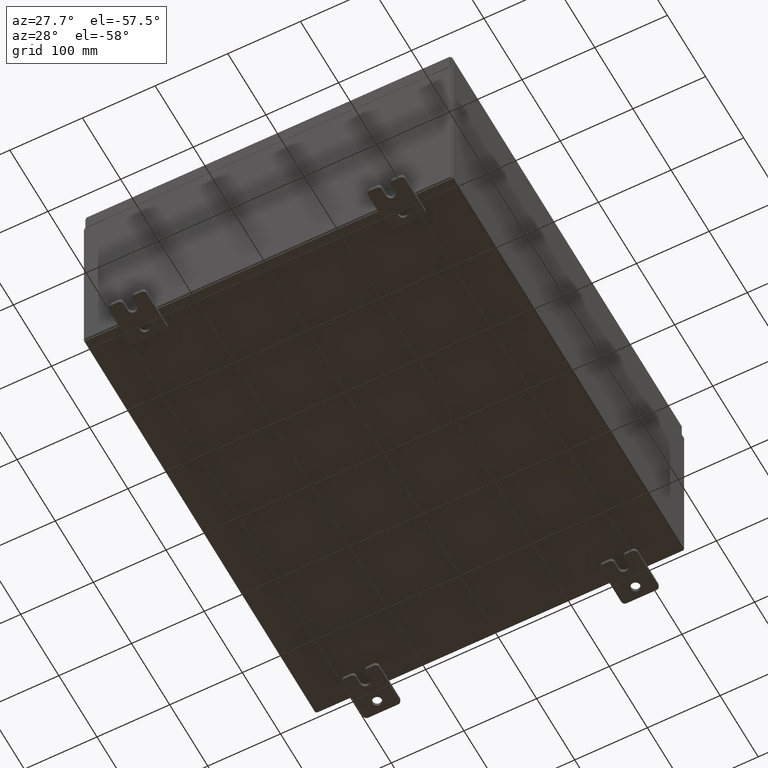
[diagram: clean part render]
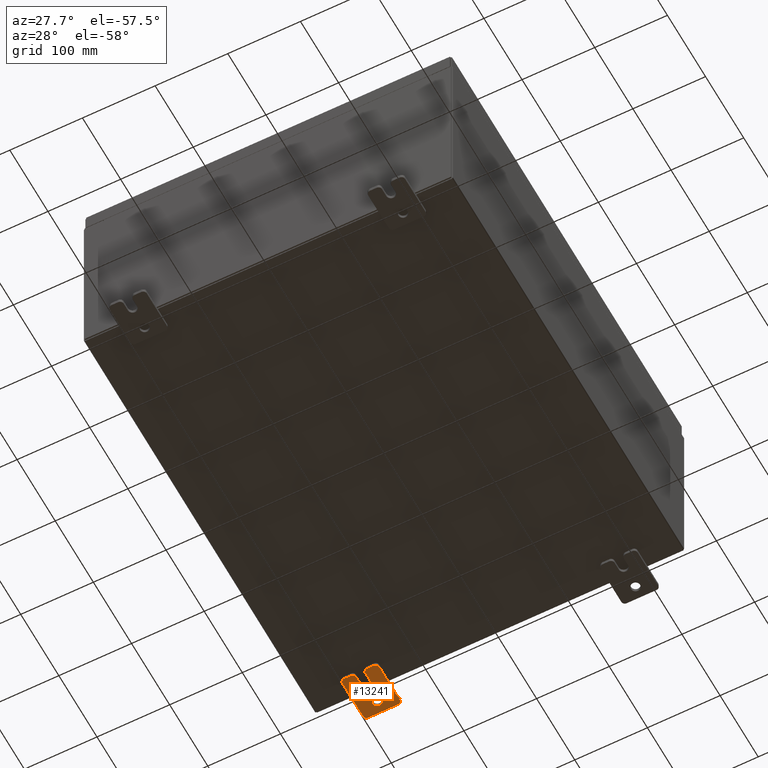
[diagram: same view with one face highlighted and labeled with its STEP entity id]
A machine part, auxiliary view. The second image highlights one B-rep face of the part: STEP entity #13241.
In plain terms, the highlighted planar face has unit normal (0, 0, 1).
Its self-contained STEP definition (entity closure, byte-faithful):
#333 = CARTESIAN_POINT ( 'NONE',  ( -0.1880000000000005800, -1.250000000000003800, 0.2500000000000005000 ) ) ;
#1643 = VERTEX_POINT ( 'NONE', #2832 ) ;
#2120 = AXIS2_PLACEMENT_3D ( 'NONE', #28383, #62713, #33320 ) ;
#2246 = CIRCLE ( 'NONE', #29845, 0.1900000000000011400 ) ;
#2832 = CARTESIAN_POINT ( 'NONE',  ( -0.1880000000000010000, 0.6249999999999992200, -0.2499999999999999200 ) ) ;
#2909 = CARTESIAN_POINT ( 'NONE',  ( -0.1879999999999997800, -1.250000000000003100, 0.4400000000000020000 ) ) ;
#2961 = EDGE_CURVE ( 'NONE', #49589, #39091, #2246, .T. ) ;
#3113 = VERTEX_POINT ( 'NONE', #21553 ) ;
#4411 = DIRECTION ( 'NONE',  ( 0.0000000000000000000, 7.189073667537492800E-016, -1.000000000000000000 ) ) ;
#4808 = DIRECTION ( 'NONE',  ( -1.000000000000000000, -0.0000000000000000000, 0.0000000000000000000 ) ) ;
#5217 = VECTOR ( 'NONE', #27392, 39.37007874015748100 ) ;
#5272 = CARTESIAN_POINT ( 'NONE',  ( -0.1879999999999997800, 1.059999999999993600, -0.8100000000000089400 ) ) ;
#5327 = CARTESIAN_POINT ( 'NONE',  ( -0.1879999999999997800, 1.059999999999993400, -1.000000000000010000 ) ) ;
#5486 = AXIS2_PLACEMENT_3D ( 'NONE', #63153, #33755, #4411 ) ;
#6452 = DIRECTION ( 'NONE',  ( 0.0000000000000000000, -1.639108796198553600E-015, -1.000000000000000000 ) ) ;
#7192 = DIRECTION ( 'NONE',  ( -1.000000000000000000, 6.523827964459549700E-016, 5.163192708025532000E-017 ) ) ;
#7648 = ORIENTED_EDGE ( 'NONE', *, *, #19574, .F. ) ;
#7961 = ORIENTED_EDGE ( 'NONE', *, *, #37955, .F. ) ;
#8204 = VERTEX_POINT ( 'NONE', #30893 ) ;
#8491 = CARTESIAN_POINT ( 'NONE',  ( -0.1879999999999997800, -1.060000000000001200, 0.9999999999999988900 ) ) ;
#9188 = VECTOR ( 'NONE', #55870, 39.37007874015748100 ) ;
#10177 = DIRECTION ( 'NONE',  ( 0.0000000000000000000, 0.0000000000000000000, -1.000000000000000000 ) ) ;
#11066 = EDGE_CURVE ( 'NONE', #8204, #61271, #55691, .T. ) ;
#11701 = CARTESIAN_POINT ( 'NONE',  ( -0.1880000000000001900, -0.6249999999999992200, -0.2499999999999993900 ) ) ;
#12689 = CARTESIAN_POINT ( 'NONE',  ( -0.1879999999999997800, -1.250000000000004700, -0.4400000000000002200 ) ) ;
#13241 = ADVANCED_FACE ( 'NONE', ( #19497, #32540 ), #42910, .F. ) ;
#13553 = DIRECTION ( 'NONE',  ( 1.000000000000000000, 0.0000000000000000000, -0.0000000000000000000 ) ) ;
#13697 = CARTESIAN_POINT ( 'NONE',  ( -0.1879999999999997800, 1.249999999999997300, 0.8099999999999935000 ) ) ;
#14077 = VECTOR ( 'NONE', #22124, 39.37007874015748100 ) ;
#14116 = VERTEX_POINT ( 'NONE', #13697 ) ;
#14848 = VECTOR ( 'NONE', #63276, 39.37007874015748100 ) ;
#15303 = AXIS2_PLACEMENT_3D ( 'NONE', #5272, #39521, #10177 ) ;
#15452 = CARTESIAN_POINT ( 'NONE',  ( -0.1879999999999997800, -1.060000000000002100, 0.4400000000000016700 ) ) ;
#16072 = CARTESIAN_POINT ( 'NONE',  ( -0.1879999999999997800, -1.250000000000002200, 0.9999999999999992200 ) ) ;
#16964 = DIRECTION ( 'NONE',  ( -1.000000000000000000, -0.0000000000000000000, 0.0000000000000000000 ) ) ;
#17797 = AXIS2_PLACEMENT_3D ( 'NONE', #33077, #13553, #47867 ) ;
#18194 = LINE ( 'NONE', #46870, #5217 ) ;
#18688 = DIRECTION ( 'NONE',  ( 0.0000000000000000000, 0.0000000000000000000, -1.000000000000000000 ) ) ;
#19037 = CARTESIAN_POINT ( 'NONE',  ( -0.1879999999999997800, 1.059999999999996500, 0.9999999999999953400 ) ) ;
#19044 = AXIS2_PLACEMENT_3D ( 'NONE', #36569, #7192, #41462 ) ;
#19114 = DIRECTION ( 'NONE',  ( -1.000000000000000000, -0.0000000000000000000, 0.0000000000000000000 ) ) ;
#19144 = CARTESIAN_POINT ( 'NONE',  ( -0.1879999999999997800, -1.060000000000003400, -0.4400000000000005000 ) ) ;
#19497 = FACE_BOUND ( 'NONE', #36062, .T. ) ;
#19574 = EDGE_CURVE ( 'NONE', #27908, #32858, #18194, .T. ) ;
#20746 = EDGE_CURVE ( 'NONE', #1643, #52208, #59575, .T. ) ;
#20808 = VERTEX_POINT ( 'NONE', #38240 ) ;
#21553 = CARTESIAN_POINT ( 'NONE',  ( -0.1880000000000001900, -0.6249999999999992200, 0.2500000000000005000 ) ) ;
#21932 = ORIENTED_EDGE ( 'NONE', *, *, #20746, .T. ) ;
#21952 = LINE ( 'NONE', #16072, #44957 ) ;
#22124 = DIRECTION ( 'NONE',  ( 0.0000000000000000000, -1.639108796198553600E-015, -1.000000000000000000 ) ) ;
#22213 = LINE ( 'NONE', #11701, #9188 ) ;
#22690 = ORIENTED_EDGE ( 'NONE', *, *, #2961, .T. ) ;
#22713 = VECTOR ( 'NONE', #32277, 39.37007874015748100 ) ;
#23543 = ORIENTED_EDGE ( 'NONE', *, *, #28749, .F. ) ;
#23973 = EDGE_CURVE ( 'NONE', #52208, #1643, #42444, .T. ) ;
#24057 = EDGE_CURVE ( 'NONE', #8204, #50635, #53985, .T. ) ;
#24068 = DIRECTION ( 'NONE',  ( 0.0000000000000000000, 0.0000000000000000000, -1.000000000000000000 ) ) ;
#24858 = CARTESIAN_POINT ( 'NONE',  ( -0.1880000000000010000, 0.6249999999999992200, -7.703811342100550500E-020 ) ) ;
#25289 = CARTESIAN_POINT ( 'NONE',  ( -0.1879999999999997800, -1.250000000000005600, -1.000000000000006200 ) ) ;
#25996 = EDGE_CURVE ( 'NONE', #3113, #51197, #56938, .T. ) ;
#26154 = CARTESIAN_POINT ( 'NONE',  ( -0.1879999999999997800, 1.249999999999994700, -0.8100000000000092700 ) ) ;
#27392 = DIRECTION ( 'NONE',  ( 0.0000000000000000000, -1.000000000000000000, 1.639108796198558100E-015 ) ) ;
#27908 = VERTEX_POINT ( 'NONE', #19037 ) ;
#28244 = LINE ( 'NONE', #333, #41289 ) ;
#28383 = CARTESIAN_POINT ( 'NONE',  ( -0.1880000000000010000, 0.6249999999999992200, -7.703811342100550500E-020 ) ) ;
#28749 = EDGE_CURVE ( 'NONE', #51197, #20808, #22213, .T. ) ;
#29794 = DIRECTION ( 'NONE',  ( 0.0000000000000000000, 0.0000000000000000000, -1.000000000000000000 ) ) ;
#29845 = AXIS2_PLACEMENT_3D ( 'NONE', #15452, #19114, #18688 ) ;
#29932 = EDGE_LOOP ( 'NONE', ( #37294, #33071, #7648, #54064, #30546, #37154, #31661, #43371, #41082, #55583, #23543, #30269, #7961, #22690 ) ) ;
#30269 = ORIENTED_EDGE ( 'NONE', *, *, #25996, .F. ) ;
#30504 = AXIS2_PLACEMENT_3D ( 'NONE', #46350, #16964, #51290 ) ;
#30546 = ORIENTED_EDGE ( 'NONE', *, *, #40420, .F. ) ;
#30608 = CIRCLE ( 'NONE', #31480, 0.1900000000000011100 ) ;
#30893 = CARTESIAN_POINT ( 'NONE',  ( -0.1879999999999997800, -1.060000000000004500, -1.000000000000006400 ) ) ;
#31480 = AXIS2_PLACEMENT_3D ( 'NONE', #34145, #4808, #39071 ) ;
#31661 = ORIENTED_EDGE ( 'NONE', *, *, #24057, .F. ) ;
#31865 = CIRCLE ( 'NONE', #15303, 0.1900000000000011100 ) ;
#32277 = DIRECTION ( 'NONE',  ( 0.0000000000000000000, 1.639108796198553600E-015, 1.000000000000000000 ) ) ;
#32540 = FACE_OUTER_BOUND ( 'NONE', #29932, .T. ) ;
#32858 = VERTEX_POINT ( 'NONE', #8491 ) ;
#33071 = ORIENTED_EDGE ( 'NONE', *, *, #46157, .T. ) ;
#33077 = CARTESIAN_POINT ( 'NONE',  ( -0.1879999999999997800, 0.0000000000000000000, 0.0000000000000000000 ) ) ;
#33320 = DIRECTION ( 'NONE',  ( 0.0000000000000000000, 0.0000000000000000000, -1.000000000000000000 ) ) ;
#33755 = DIRECTION ( 'NONE',  ( -1.000000000000000000, -0.0000000000000000000, 0.0000000000000000000 ) ) ;
#34145 = CARTESIAN_POINT ( 'NONE',  ( -0.1879999999999997800, 1.059999999999996300, 0.8099999999999938400 ) ) ;
#35590 = VERTEX_POINT ( 'NONE', #12689 ) ;
#36062 = EDGE_LOOP ( 'NONE', ( #21932, #60487 ) ) ;
#36569 = CARTESIAN_POINT ( 'NONE',  ( -0.1880000000000001900, -0.6249999999999992200, 6.829619984160658000E-017 ) ) ;
#37154 = ORIENTED_EDGE ( 'NONE', *, *, #46325, .T. ) ;
#37294 = ORIENTED_EDGE ( 'NONE', *, *, #45150, .F. ) ;
#37312 = EDGE_CURVE ( 'NONE', #27908, #14116, #30608, .T. ) ;
#37955 = EDGE_CURVE ( 'NONE', #49589, #3113, #28244, .T. ) ;
#38240 = CARTESIAN_POINT ( 'NONE',  ( -0.1880000000000004700, -1.060000000000003400, -0.2499999999999994400 ) ) ;
#39071 = DIRECTION ( 'NONE',  ( 0.0000000000000000000, 0.0000000000000000000, -1.000000000000000000 ) ) ;
#39091 = VERTEX_POINT ( 'NONE', #2909 ) ;
#39284 = DIRECTION ( 'NONE',  ( 6.556435184794182400E-016, 1.000000000000000000, 0.0000000000000000000 ) ) ;
#39371 = EDGE_CURVE ( 'NONE', #35590, #20808, #41977, .T. ) ;
#39521 = DIRECTION ( 'NONE',  ( -1.000000000000000000, -0.0000000000000000000, 0.0000000000000000000 ) ) ;
#40420 = EDGE_CURVE ( 'NONE', #41844, #14116, #48848, .T. ) ;
#41082 = ORIENTED_EDGE ( 'NONE', *, *, #49642, .F. ) ;
#41289 = VECTOR ( 'NONE', #39284, 39.37007874015748100 ) ;
#41327 = VERTEX_POINT ( 'NONE', #51308 ) ;
#41403 = CARTESIAN_POINT ( 'NONE',  ( -0.1880000000000004700, -1.060000000000002100, 0.2500000000000005000 ) ) ;
#41462 = DIRECTION ( 'NONE',  ( -6.829619984160660000E-016, -1.000000000000000000, 0.0000000000000000000 ) ) ;
#41844 = VERTEX_POINT ( 'NONE', #26154 ) ;
#41977 = CIRCLE ( 'NONE', #57026, 0.1900000000000011100 ) ;
#42444 = CIRCLE ( 'NONE', #52670, 0.2499999999999999200 ) ;
#42910 = PLANE ( 'NONE',  #17797 ) ;
#43371 = ORIENTED_EDGE ( 'NONE', *, *, #11066, .T. ) ;
#44957 = VECTOR ( 'NONE', #6452, 39.37007874015748100 ) ;
#45150 = EDGE_CURVE ( 'NONE', #41327, #39091, #21952, .T. ) ;
#46157 = EDGE_CURVE ( 'NONE', #41327, #32858, #49531, .T. ) ;
#46325 = EDGE_CURVE ( 'NONE', #41844, #50635, #31865, .T. ) ;
#46350 = CARTESIAN_POINT ( 'NONE',  ( -0.1879999999999997800, -1.060000000000004100, -0.8100000000000050500 ) ) ;
#46870 = CARTESIAN_POINT ( 'NONE',  ( -0.1879999999999997800, 1.249999999999997600, 0.9999999999999951200 ) ) ;
#47867 = DIRECTION ( 'NONE',  ( -0.0000000000000000000, 0.0000000000000000000, -1.000000000000000000 ) ) ;
#48848 = LINE ( 'NONE', #56743, #22713 ) ;
#49531 = CIRCLE ( 'NONE', #5486, 0.1900000000000011100 ) ;
#49589 = VERTEX_POINT ( 'NONE', #41403 ) ;
#49642 = EDGE_CURVE ( 'NONE', #35590, #61271, #54762, .T. ) ;
#50635 = VERTEX_POINT ( 'NONE', #5327 ) ;
#51197 = VERTEX_POINT ( 'NONE', #60249 ) ;
#51255 = CARTESIAN_POINT ( 'NONE',  ( -0.1879999999999997800, -1.250000000000005300, -0.8100000000000047200 ) ) ;
#51290 = DIRECTION ( 'NONE',  ( 0.0000000000000000000, 0.0000000000000000000, -1.000000000000000000 ) ) ;
#51308 = CARTESIAN_POINT ( 'NONE',  ( -0.1879999999999997800, -1.250000000000002400, 0.8099999999999980500 ) ) ;
#52208 = VERTEX_POINT ( 'NONE', #55912 ) ;
#52670 = AXIS2_PLACEMENT_3D ( 'NONE', #24858, #59180, #29794 ) ;
#53479 = DIRECTION ( 'NONE',  ( -1.000000000000000000, -0.0000000000000000000, 0.0000000000000000000 ) ) ;
#53985 = LINE ( 'NONE', #25289, #14848 ) ;
#54064 = ORIENTED_EDGE ( 'NONE', *, *, #37312, .T. ) ;
#54762 = LINE ( 'NONE', #56467, #14077 ) ;
#55583 = ORIENTED_EDGE ( 'NONE', *, *, #39371, .T. ) ;
#55691 = CIRCLE ( 'NONE', #30504, 0.1900000000000011100 ) ;
#55870 = DIRECTION ( 'NONE',  ( -6.556435184794182400E-016, -1.000000000000000000, -1.639108796198545600E-016 ) ) ;
#55912 = CARTESIAN_POINT ( 'NONE',  ( -0.1880000000000010000, 0.6249999999999992200, 0.2499999999999999200 ) ) ;
#56467 = CARTESIAN_POINT ( 'NONE',  ( -0.1879999999999997800, -1.250000000000002200, 0.9999999999999992200 ) ) ;
#56743 = CARTESIAN_POINT ( 'NONE',  ( -0.1879999999999997800, 1.249999999999994200, -1.000000000000010400 ) ) ;
#56938 = CIRCLE ( 'NONE', #19044, 0.2499999999999999200 ) ;
#57026 = AXIS2_PLACEMENT_3D ( 'NONE', #19144, #53479, #24068 ) ;
#59180 = DIRECTION ( 'NONE',  ( 1.000000000000000000, -0.0000000000000000000, -5.163192708025532000E-017 ) ) ;
#59575 = CIRCLE ( 'NONE', #2120, 0.2499999999999999200 ) ;
#60249 = CARTESIAN_POINT ( 'NONE',  ( -0.1880000000000001900, -0.6249999999999992200, -0.2499999999999998600 ) ) ;
#60487 = ORIENTED_EDGE ( 'NONE', *, *, #23973, .T. ) ;
#61271 = VERTEX_POINT ( 'NONE', #51255 ) ;
#62713 = DIRECTION ( 'NONE',  ( 1.000000000000000000, -0.0000000000000000000, -5.163192708025532000E-017 ) ) ;
#63153 = CARTESIAN_POINT ( 'NONE',  ( -0.1879999999999997800, -1.060000000000001600, 0.8099999999999978300 ) ) ;
#63276 = DIRECTION ( 'NONE',  ( 0.0000000000000000000, 1.000000000000000000, -1.639108796198558100E-015 ) ) ;